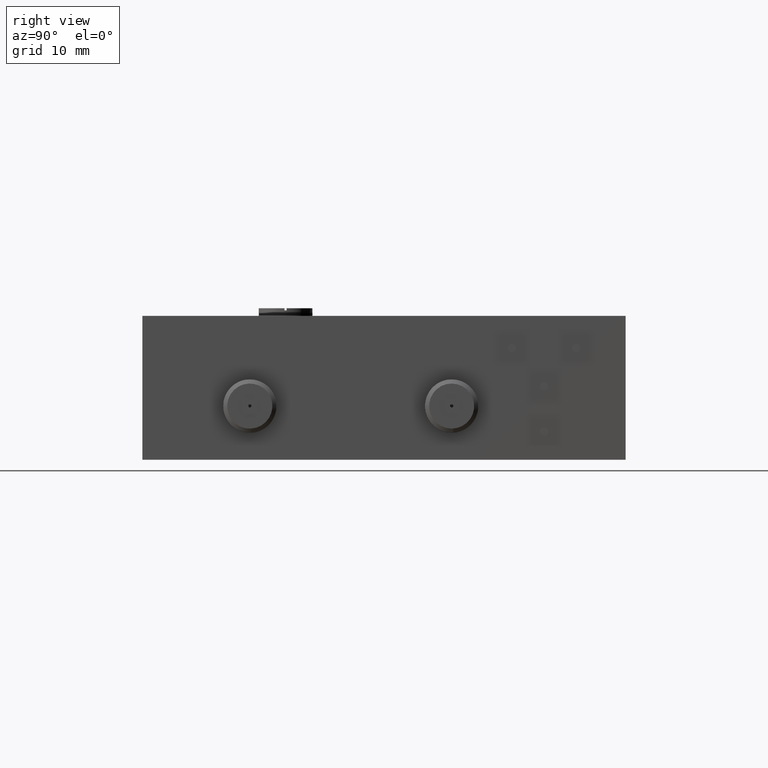
[diagram: clean part render]
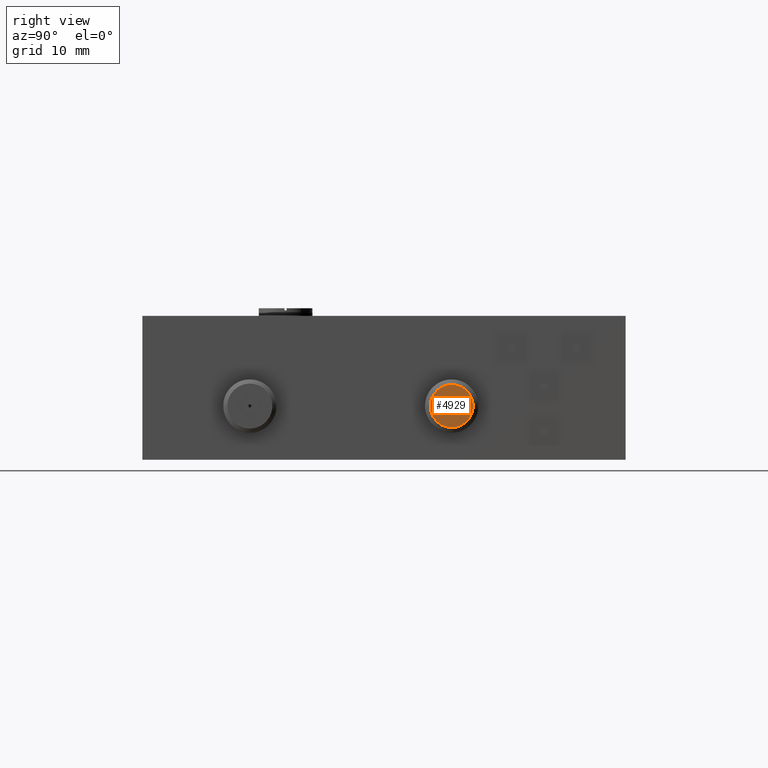
[diagram: same view with one face highlighted and labeled with its STEP entity id]
A machine part, right view. The second image highlights one B-rep face of the part: STEP entity #4929.
In plain terms, the highlighted planar face has unit normal (-1, 0, 0).
Its self-contained STEP definition (entity closure, byte-faithful):
#61 = EDGE_CURVE ( 'NONE', #6729, #6548, #7261, .T. ) ;
#246 = AXIS2_PLACEMENT_3D ( 'NONE', #9864, #5251, #6176 ) ;
#619 = CARTESIAN_POINT ( 'NONE',  ( 1.257228677357960800, 0.3149999999999992800, 0.2500000000000000600 ) ) ;
#718 = EDGE_CURVE ( 'NONE', #7825, #3446, #6980, .T. ) ;
#1280 = AXIS2_PLACEMENT_3D ( 'NONE', #6928, #4211, #6966 ) ;
#1418 = DIRECTION ( 'NONE',  ( -1.000000000000000000, 5.859715010901041500E-031, 6.603493604115204400E-031 ) ) ;
#1698 = FACE_BOUND ( 'NONE', #3272, .T. ) ;
#1914 = ORIENTED_EDGE ( 'NONE', *, *, #718, .F. ) ;
#2671 = CARTESIAN_POINT ( 'NONE',  ( 1.257228677357960800, 0.3149999999999992800, 0.2500000000000000600 ) ) ;
#3272 = EDGE_LOOP ( 'NONE', ( #1914, #9322 ) ) ;
#3328 = DIRECTION ( 'NONE',  ( -8.828498614632581400E-031, -0.6637272391014469300, -0.7479747001568773900 ) ) ;
#3446 = VERTEX_POINT ( 'NONE', #4308 ) ;
#3492 = DIRECTION ( 'NONE',  ( 1.000000000000000000, -2.014366542466924500E-045, -5.692775011319569400E-046 ) ) ;
#3644 = ORIENTED_EDGE ( 'NONE', *, *, #61, .F. ) ;
#4027 = CIRCLE ( 'NONE', #5290, 0.007499999999999998000 ) ;
#4211 = DIRECTION ( 'NONE',  ( -1.000000000000000000, 2.014366542466924500E-045, 5.692775011319569400E-046 ) ) ;
#4308 = CARTESIAN_POINT ( 'NONE',  ( 1.257228677357960800, 0.3100220457067384700, 0.2443901897488234300 ) ) ;
#4345 = AXIS2_PLACEMENT_3D ( 'NONE', #2671, #3492, #4523 ) ;
#4346 = FACE_OUTER_BOUND ( 'NONE', #7226, .T. ) ;
#4523 = DIRECTION ( 'NONE',  ( 0.0000000000000000000, -0.6637272391014520400, -0.7479747001568729500 ) ) ;
#4929 = ADVANCED_FACE ( 'NONE', ( #4346, #1698 ), #9912, .F. ) ;
#5251 = DIRECTION ( 'NONE',  ( -1.000000000000000000, 2.014366542466924500E-045, 5.692775011319569400E-046 ) ) ;
#5290 = AXIS2_PLACEMENT_3D ( 'NONE', #9721, #10577, #8705 ) ;
#5694 = EDGE_CURVE ( 'NONE', #6548, #6729, #10285, .T. ) ;
#5882 = CARTESIAN_POINT ( 'NONE',  ( 1.257228677357960800, 0.3813727239101440400, 0.3247974700156877600 ) ) ;
#6176 = DIRECTION ( 'NONE',  ( 0.0000000000000000000, -0.6637272391014468200, -0.7479747001568775000 ) ) ;
#6548 = VERTEX_POINT ( 'NONE', #5882 ) ;
#6729 = VERTEX_POINT ( 'NONE', #7866 ) ;
#6928 = CARTESIAN_POINT ( 'NONE',  ( 1.257228677357960800, 0.3149999999999992800, 0.2500000000000000600 ) ) ;
#6966 = DIRECTION ( 'NONE',  ( 0.0000000000000000000, -0.6637272391014468200, -0.7479747001568775000 ) ) ;
#6980 = CIRCLE ( 'NONE', #4345, 0.007500000000000017900 ) ;
#7226 = EDGE_LOOP ( 'NONE', ( #10408, #3644 ) ) ;
#7261 = CIRCLE ( 'NONE', #1280, 0.1000000000000000500 ) ;
#7825 = VERTEX_POINT ( 'NONE', #10065 ) ;
#7866 = CARTESIAN_POINT ( 'NONE',  ( 1.257228677357960800, 0.2486272760898545800, 0.1752025299843123200 ) ) ;
#8381 = EDGE_CURVE ( 'NONE', #3446, #7825, #4027, .T. ) ;
#8705 = DIRECTION ( 'NONE',  ( 0.0000000000000000000, -0.6637272391014447100, -0.7479747001568793900 ) ) ;
#9322 = ORIENTED_EDGE ( 'NONE', *, *, #8381, .F. ) ;
#9721 = CARTESIAN_POINT ( 'NONE',  ( 1.257228677357960800, 0.3149999999999992800, 0.2500000000000000600 ) ) ;
#9864 = CARTESIAN_POINT ( 'NONE',  ( 1.257228677357960800, 0.3149999999999992800, 0.2500000000000000600 ) ) ;
#9912 = PLANE ( 'NONE',  #10182 ) ;
#10065 = CARTESIAN_POINT ( 'NONE',  ( 1.257228677357960800, 0.3199779542932601500, 0.2556098102511766300 ) ) ;
#10182 = AXIS2_PLACEMENT_3D ( 'NONE', #619, #1418, #3328 ) ;
#10285 = CIRCLE ( 'NONE', #246, 0.1000000000000000500 ) ;
#10408 = ORIENTED_EDGE ( 'NONE', *, *, #5694, .F. ) ;
#10577 = DIRECTION ( 'NONE',  ( 1.000000000000000000, -2.014366542466924500E-045, -5.692775011319569400E-046 ) ) ;